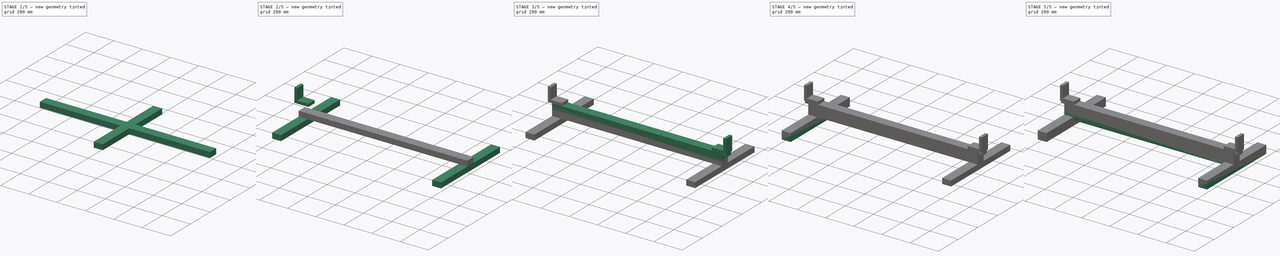
[diagram: build sequence overview — one tinted view per stage of 5, left to right]
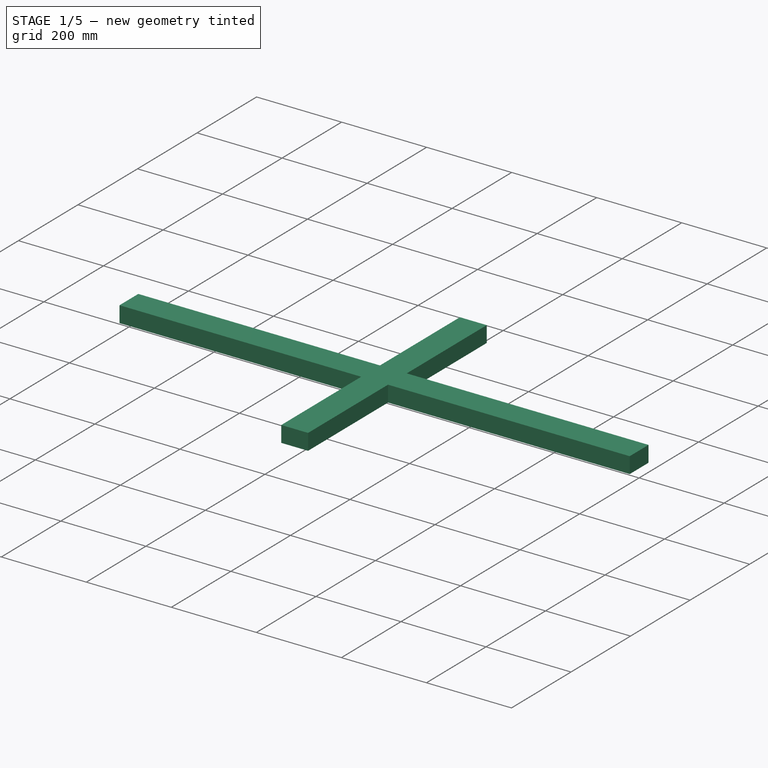
[diagram: stage 1 of 5 — iso view after this stage's code; geometry added in this stage tinted green]
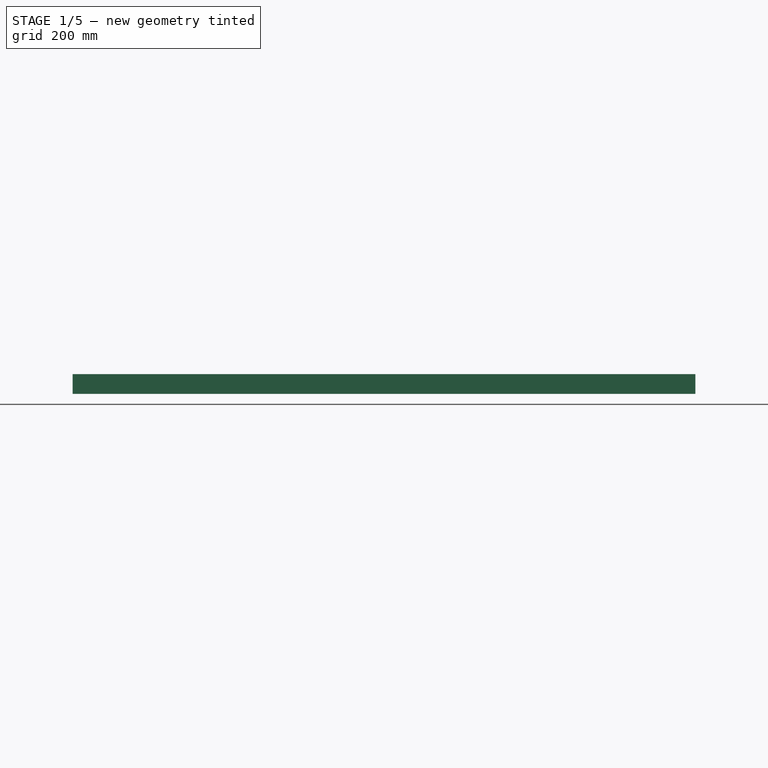
[diagram: stage 1 of 5 — front view after this stage's code; geometry added in this stage tinted green]
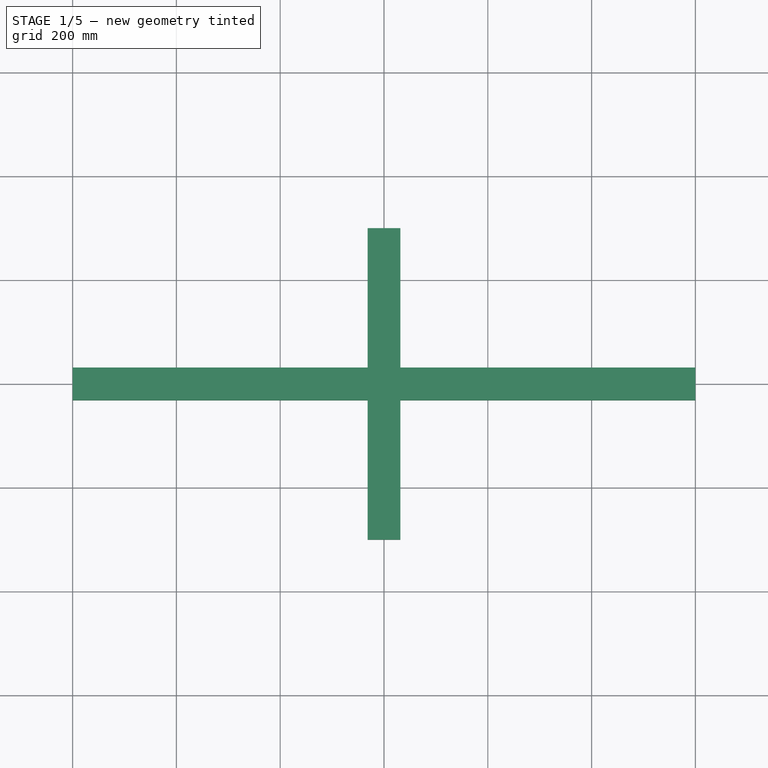
[diagram: stage 1 of 5 — top view after this stage's code; geometry added in this stage tinted green]
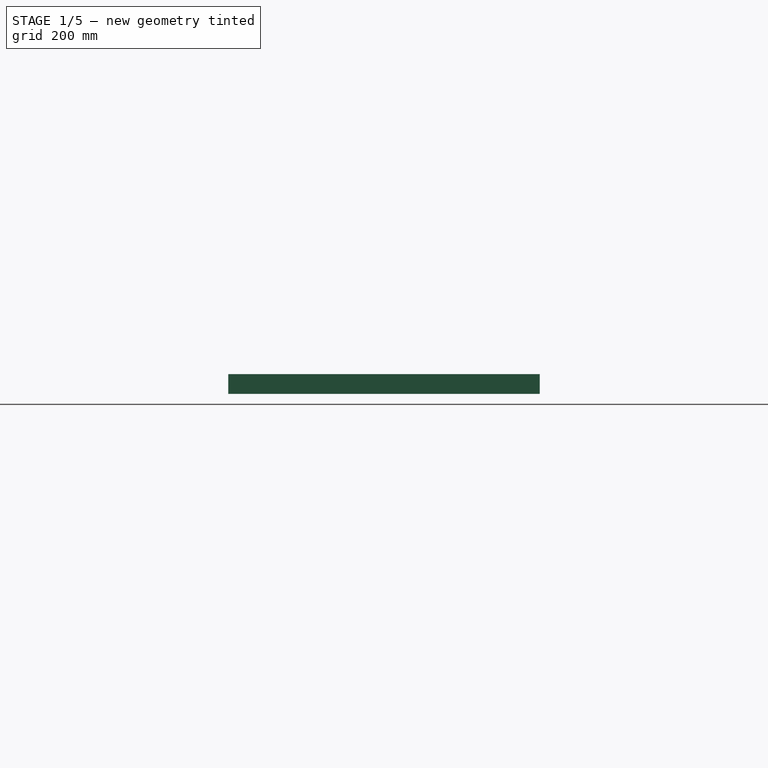
[diagram: stage 1 of 5 — right view after this stage's code; geometry added in this stage tinted green]
FCSTD DOCUMENT  (FreeCAD 0.21R33771 (Git))
Label: reflector_2024_base_3d_printing
License: All rights reserved
LicenseURL: http://en.wikipedia.org/wiki/All_rights_reserved
objects: Part::FeaturePython×6, PartDesign::Body×5, Part::Compound×4, Sketcher::SketchObject×3, PartDesign::Pad×3, PartDesign::FeatureBase×2, Part::Mirroring×1
note: 27 computed .brp shape members not serialized (recipe doc carries the construction recipe); baked Part::Feature solids carry a one-line shape summary decoded from their .brp

FEATURE [Sketcher::SketchObject] Sketch
  FullyConstrained = true
  MapMode = 5
  Support = -> [XY_Plane]
  sketch-geometry (4):
    g0: LineSegment StartX=-600 StartY=31.5 StartZ=0 EndX=600 EndY=31.5 EndZ=0
    g1: LineSegment StartX=600 StartY=31.5 StartZ=0 EndX=600 EndY=-31.5 EndZ=0
    g2: LineSegment StartX=600 StartY=-31.5 StartZ=0 EndX=-600 EndY=-31.5 EndZ=0
    g3: LineSegment StartX=-600 StartY=-31.5 StartZ=0 EndX=-600 EndY=31.5 EndZ=0
  constraints (10):
    c: Coincident(g0,g1)
    c: Coincident(g1,g2)
    c: Coincident(g2,g3)
    c: Coincident(g3,g0)
    c: Horizontal(g2)
    c: Vertical(g3)
    c: Symmetric(g0,g1,g-1)
    c: Symmetric(g0,g0,g-2)
    c: DistanceY(g1,g1) = 63
    c: DistanceX(g0,g0) = 1200
FEATURE [PartDesign::Pad] Pad  label="hand"
  Direction = (0,0,1)
  Length = 38
  Length2 = 10
  Profile = -> Sketch
  ReferenceAxis = -> Sketch [N_Axis]
  Type = 0
FEATURE [Sketcher::SketchObject] Sketch002
  FullyConstrained = true
  MapMode = 5
  Support = -> [XY_Plane003]
  sketch-geometry (4):
    g0: LineSegment StartX=-31.5 StartY=300 StartZ=0 EndX=31.5 EndY=300 EndZ=0
    g1: LineSegment StartX=31.5 StartY=300 StartZ=0 EndX=31.5 EndY=-300 EndZ=0
    g2: LineSegment StartX=31.5 StartY=-300 StartZ=0 EndX=-31.5 EndY=-300 EndZ=0
    g3: LineSegment StartX=-31.5 StartY=-300 StartZ=0 EndX=-31.5 EndY=300 EndZ=0
  constraints (10):
    c: Coincident(g0,g1)
    c: Coincident(g1,g2)
    c: Coincident(g2,g3)
    c: Coincident(g3,g0)
    c: Horizontal(g2)
    c: Vertical(g3)
    c: DistanceX(g0,g0) = 63
    c: DistanceY(g1,g1) = 600
    c: Symmetric(g1,g0,g-1)
    c: Symmetric(g0,g0,g-2)
FEATURE [PartDesign::Pad] Pad002
  Direction = (0,0,1)
  Length = 38
  Length2 = 10
  Profile = -> Sketch002
  ReferenceAxis = -> Sketch002 [N_Axis]
  Type = 0
FEATURE [PartDesign::Body] Body003  label="timber_600"
  Group = -> [Sketch002,Pad002]
  Origin = -> Origin003
  Placement = pos=(568.5,0,-38) rot=(0,0,1;0rad)
  Tip = -> Pad002
  expr: .Placement.Base.x = 600 - 63 / 2
FEATURE [PartDesign::FeatureBase] Clone001
  BaseFeature = -> Body003
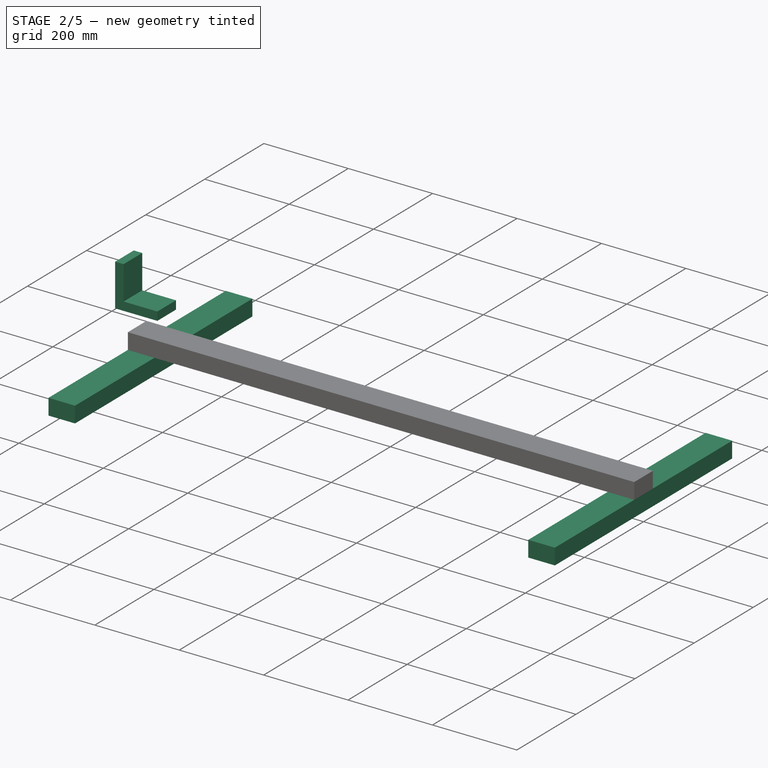
[diagram: stage 2 of 5 — iso view after this stage's code; geometry added in this stage tinted green]
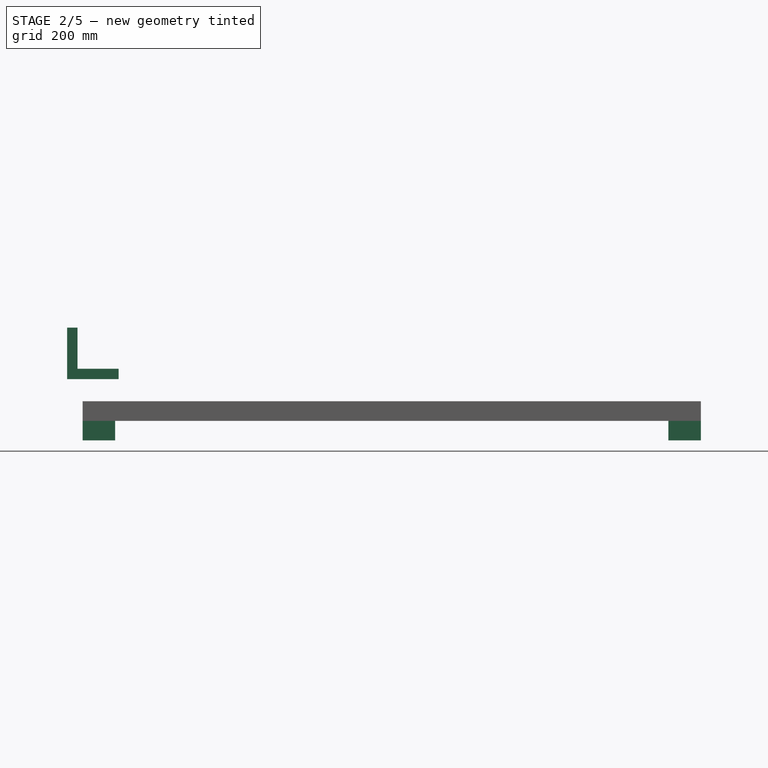
[diagram: stage 2 of 5 — front view after this stage's code; geometry added in this stage tinted green]
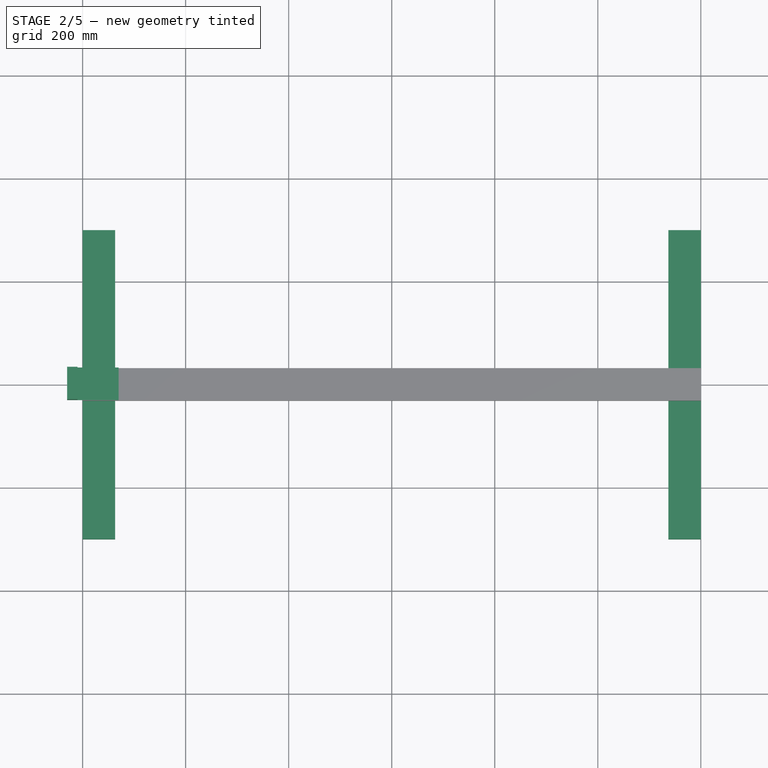
[diagram: stage 2 of 5 — top view after this stage's code; geometry added in this stage tinted green]
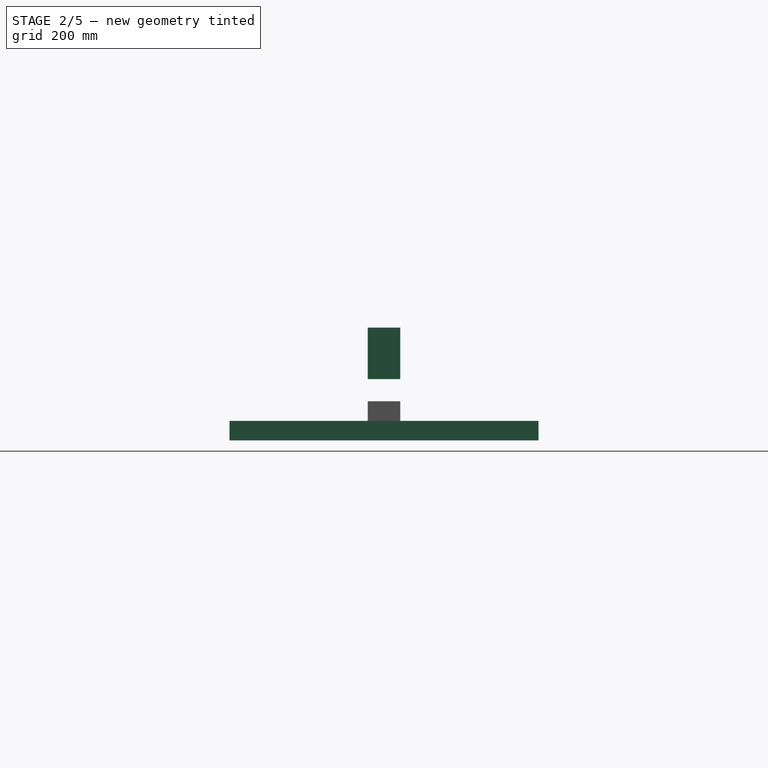
[diagram: stage 2 of 5 — right view after this stage's code; geometry added in this stage tinted green]
FEATURE [PartDesign::Body] Body001  label="timber_1200_001"
  Group = -> [Clone]
  Origin = -> Origin001
  Placement = pos=(0,0,43) rot=(0,0,1;0rad)
  Tip = -> Clone
  expr: .Placement.Base.z = 38 + 5
FEATURE [Sketcher::SketchObject] Sketch001
  FullyConstrained = true
  MapMode = 5
  Placement = pos=(0,0,0) rot=(1,0,0;1.5708rad)
  Support = -> [XZ_Plane002]
  sketch-geometry (6):
    g0: LineSegment StartX=0 StartY=100 StartZ=0 EndX=-20 EndY=100 EndZ=0
    g1: LineSegment StartX=-20 StartY=100 StartZ=0 EndX=-20 EndY=20 EndZ=0
    g2: LineSegment StartX=-20 StartY=20 StartZ=0 EndX=-100 EndY=20 EndZ=0
    g3: LineSegment StartX=-100 StartY=20 StartZ=0 EndX=-100 EndY=0 EndZ=0
    g4: LineSegment StartX=-100 StartY=0 StartZ=0 EndX=0 EndY=0 EndZ=0
    g5: LineSegment StartX=0 StartY=0 StartZ=0 EndX=0 EndY=100 EndZ=0
  constraints (17):
    c: PointOnObject(g0,g-2)
    c: Horizontal(g0)
    c: Coincident(g0,g1)
    c: Vertical(g1)
    c: Coincident(g1,g2)
    c: Horizontal(g2)
    c: Coincident(g2,g3)
    c: PointOnObject(g3,g-1)
    c: Coincident(g3,g4)
    c: Coincident(g4,g-1)
    c: Coincident(g4,g5)
    c: Coincident(g5,g0)
    c: DistanceX(g0,g0) = 20
    c: Vertical(g3)
    c: Equal(g3,g0)
    c: Equal(g5,g4)
    c: DistanceY(g1,g1) = 80
FEATURE [PartDesign::Pad] Pad001
  Direction = (0,-1,2e-16)
  Length = 63
  Length2 = 10
  Midplane = true
  Placement = pos=(0,0,0) rot=(1,0,0;1.5708rad)
  Profile = -> Sketch001
  ReferenceAxis = -> Sketch001 [N_Axis]
  Type = 0
FEATURE [PartDesign::Body] Body002  label="handle_R"
  Group = -> [Sketch001,Pad001]
  Origin = -> Origin002
  Placement = pos=(630,0,81) rot=(0,0,1;0rad)
  Tip = -> Pad001
  expr: .Placement.Base.x = 1200 / 2 + 30
  expr: .Placement.Base.z = 38 + 38 + 5
FEATURE [Part::Mirroring] Part__Mirroring  label="handle_L"
  Base = (1.52588e-05,1.07e-14,131)
  Normal = (1,0,-1.19209e-07)
  Source = -> Body002
FEATURE [PartDesign::Body] Body004
  Group = -> [Clone001]
  Origin = -> Origin004
  Placement = pos=(-568.5,0,-38) rot=(0,0,1;0rad)
  Tip = -> Clone001
  expr: .Placement.Base.x = -600 + 63 / 2
FEATURE [Part::Compound] Compound003  label="base_lower"
  Links = -> [Body003,Body004,Body]
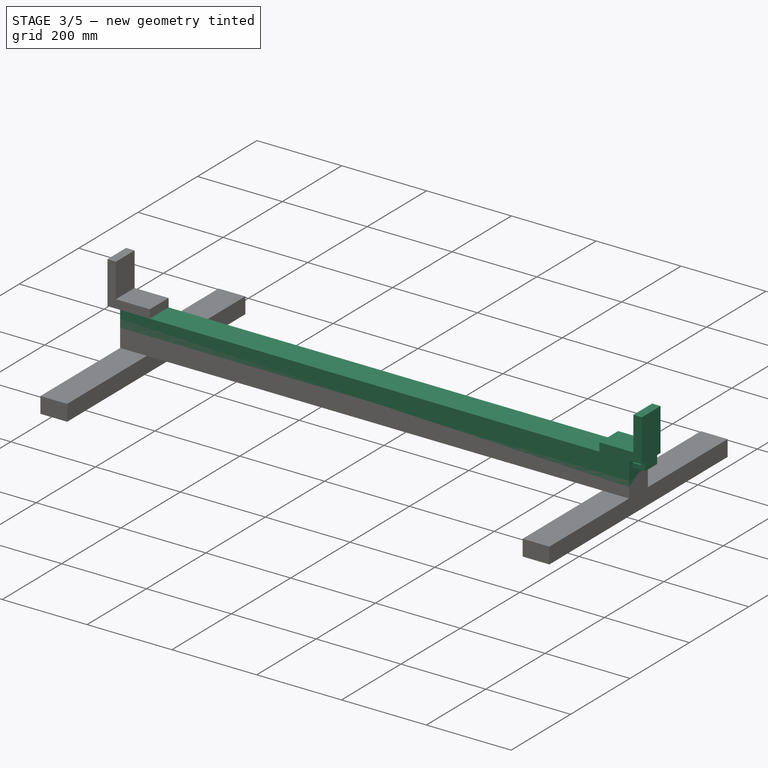
[diagram: stage 3 of 5 — iso view after this stage's code; geometry added in this stage tinted green]
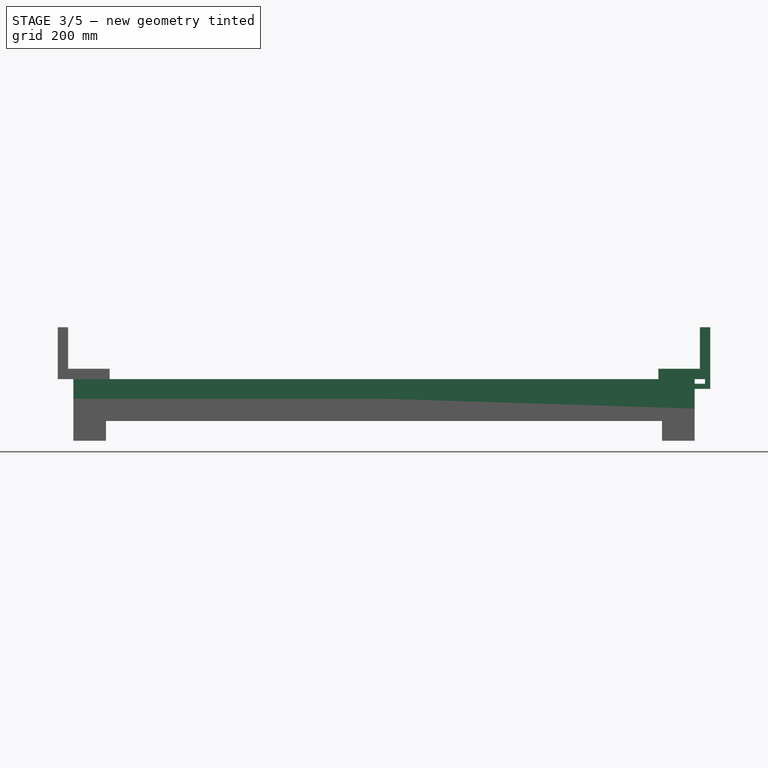
[diagram: stage 3 of 5 — front view after this stage's code; geometry added in this stage tinted green]
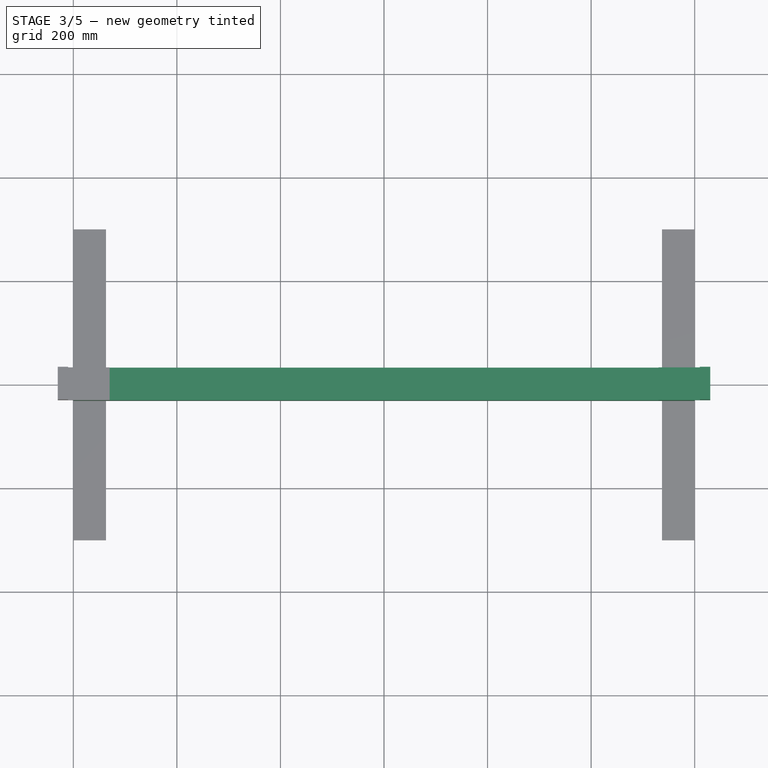
[diagram: stage 3 of 5 — top view after this stage's code; geometry added in this stage tinted green]
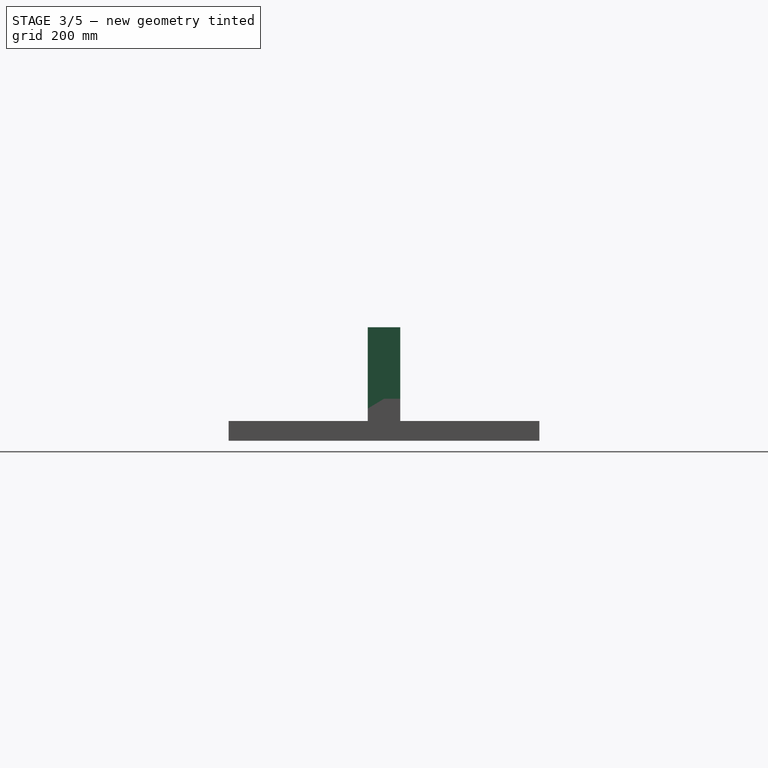
[diagram: stage 3 of 5 — right view after this stage's code; geometry added in this stage tinted green]
FEATURE [Part::FeaturePython] b_L_corner_001_001  label="L_corner_002"  # a2plus imported part (geometry in sourceFile) (typed FeaturePython)
  Placement = pos=(630,0,62) rot=(0,0,1;0rad)
  a2p_Version = 0.4.64
  fixedPosition = false
  objectType = a2pPart
  sourceFile = .\L_corner.FCStd
  subassemblyImport = false
  timeLastImport = 1.71093e+09
  updateColors = true
  expr: .Placement.Base.x = 600 + 30
  expr: .Placement.Base.z = 38 / 2 + 38 + 5
FEATURE [Part::FeaturePython] b_reflector_2024_timber_base_001_001  label="reflector_2024_timber_base_002"  # a2plus imported part (geometry in sourceFile) (typed FeaturePython)
  Placement = pos=(0,0,43) rot=(1,0,0;1.5708rad)
  a2p_Version = 0.4.64
  fixedPosition = false
  objectType = a2pPart
  sourceFile = .\reflector_2024_timber_base.FCStd
  subassemblyImport = false
  timeLastImport = 1.71095e+09
  updateColors = true
  expr: .Placement.Base.z = 38 + 5
FEATURE [PartDesign::Body] Body  label="timber_1200"
  Group = -> [Sketch,Pad]
  Origin = -> Origin
  Tip = -> Pad
FEATURE [PartDesign::FeatureBase] Clone
  BaseFeature = -> Body
FEATURE [Part::Compound] Compound002  label="base_upper"
  Links = -> [Body002,Part__Mirroring,Body001]
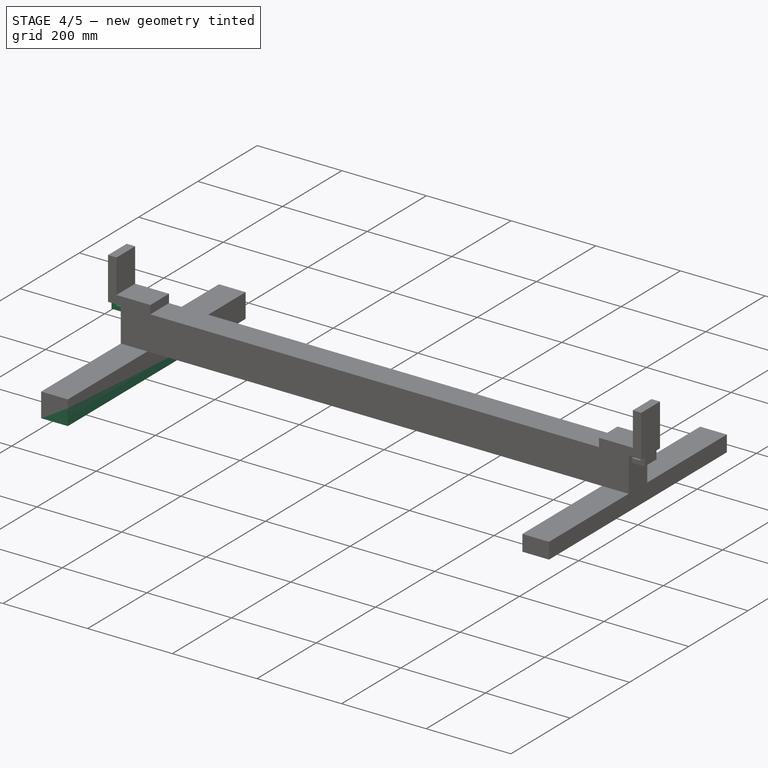
[diagram: stage 4 of 5 — iso view after this stage's code; geometry added in this stage tinted green]
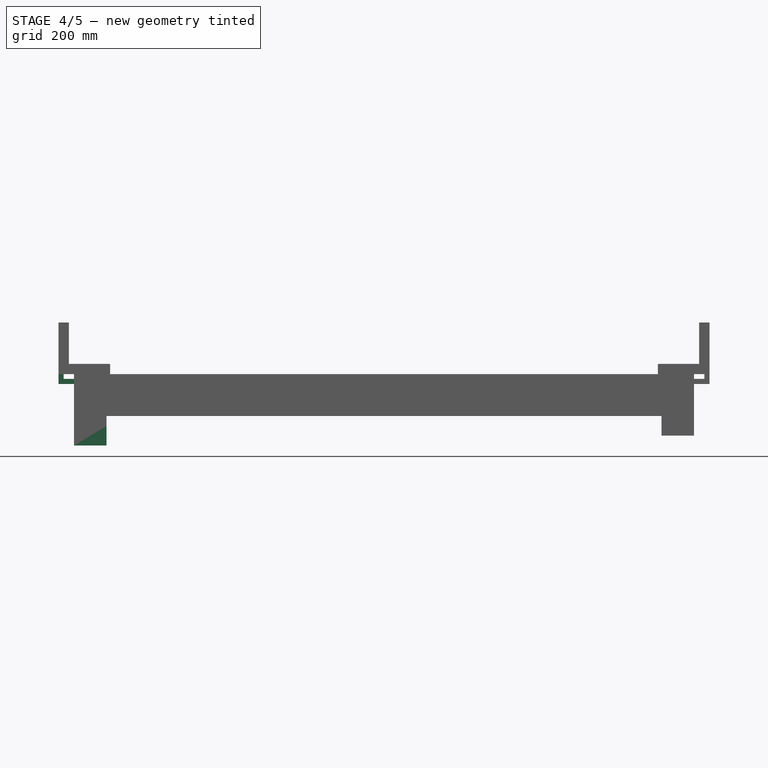
[diagram: stage 4 of 5 — front view after this stage's code; geometry added in this stage tinted green]
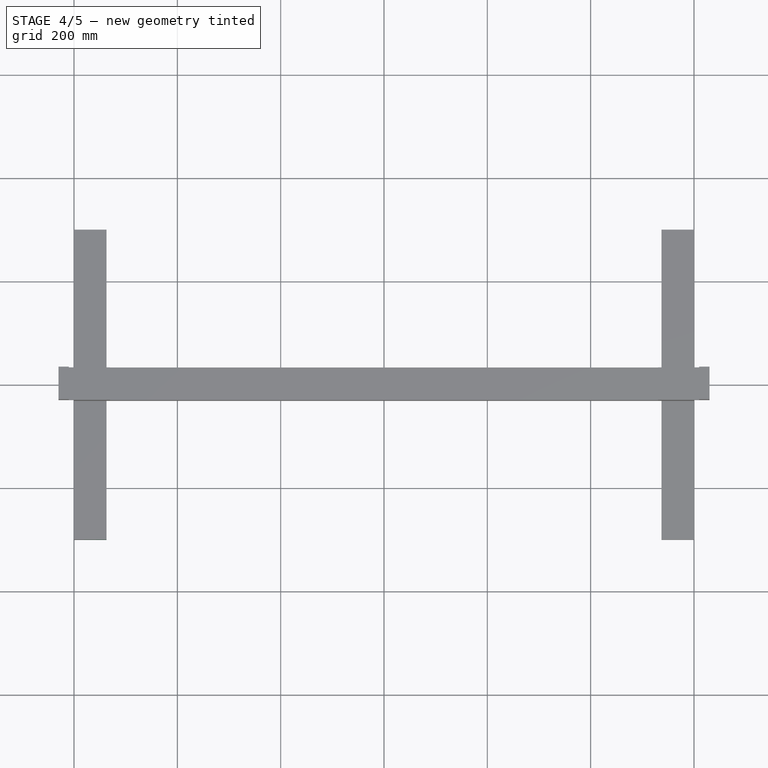
[diagram: stage 4 of 5 — top view after this stage's code; geometry added in this stage tinted green]
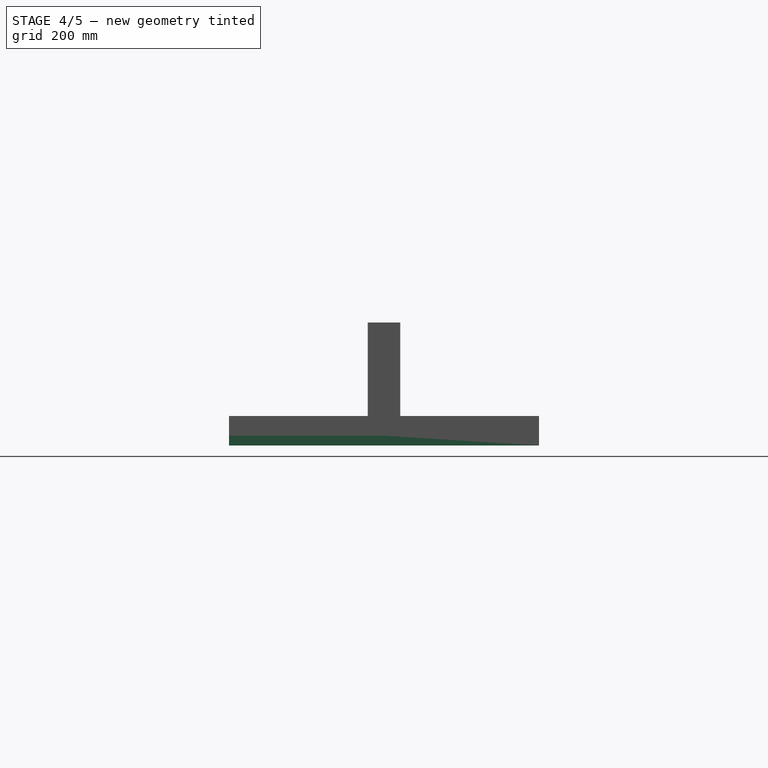
[diagram: stage 4 of 5 — right view after this stage's code; geometry added in this stage tinted green]
FEATURE [Part::FeaturePython] b_reflector_2024_timber_half_001_001  label="reflector_2024_timber_half_002"  # a2plus imported part (geometry in sourceFile) (typed FeaturePython)
  Placement = pos=(-568.5,-9e-15,-38) rot=(0.57735,-0.57735,0.57735;4.18879rad)
  a2p_Version = 0.4.64
  fixedPosition = false
  objectType = a2pPart
  sourceFile = .\reflector_2024_timber_half.FCStd
  subassemblyImport = false
  timeLastImport = 1.71052e+09
  updateColors = true
  expr: .Placement.Base.x = -(600 - 63 / 2)
  expr: .Placement.Base.z = -38
FEATURE [Part::FeaturePython] b_L_corner_001_  label="L_corner_001"  # a2plus imported part (geometry in sourceFile) (typed FeaturePython)
  Placement = pos=(-630,0,62) rot=(0,0,1;3.14159rad)
  a2p_Version = 0.4.64
  fixedPosition = false
  objectType = a2pPart
  sourceFile = .\L_corner.FCStd
  subassemblyImport = false
  timeLastImport = 1.71093e+09
  updateColors = true
  expr: .Placement.Base.x = -600 - 30
  expr: .Placement.Base.z = 38 / 2 + 38 + 5
FEATURE [Part::Compound] Compound001  label="base_2"
  Links = -> [b_L_corner_001_,b_L_corner_001_001,b_reflector_2024_timber_base_001_001]
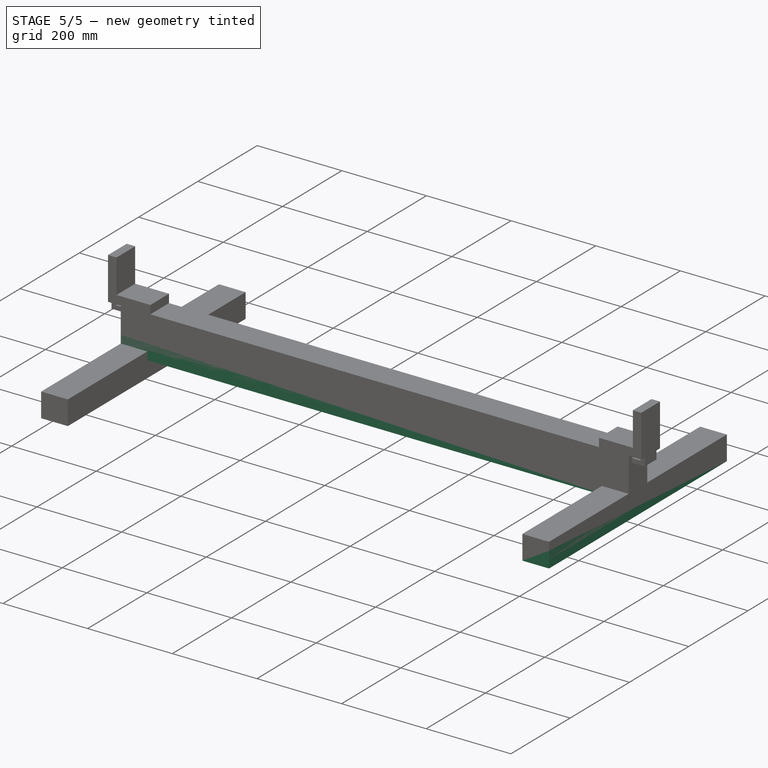
[diagram: stage 5 of 5 — iso view after this stage's code; geometry added in this stage tinted green]
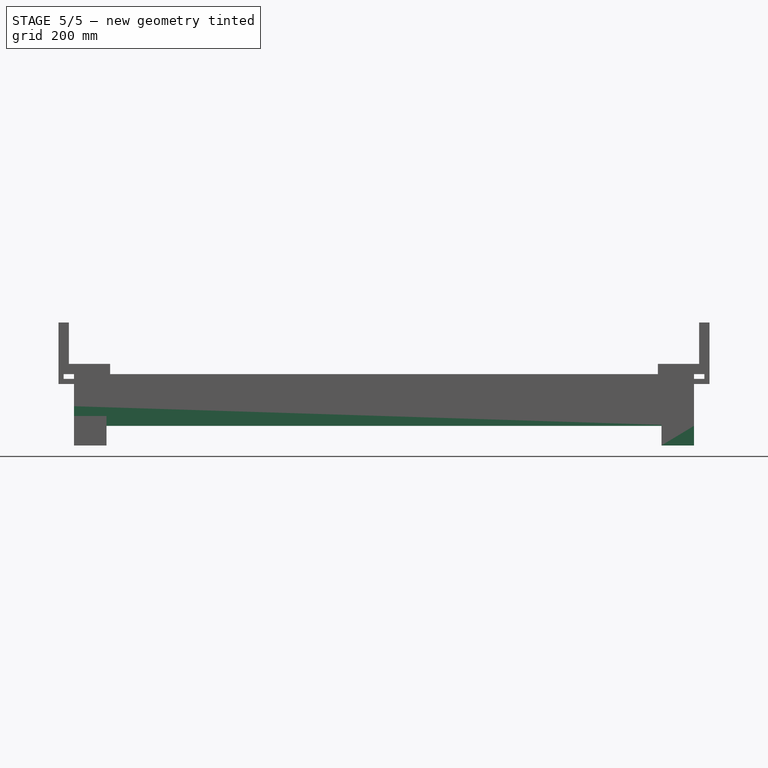
[diagram: stage 5 of 5 — front view after this stage's code; geometry added in this stage tinted green]
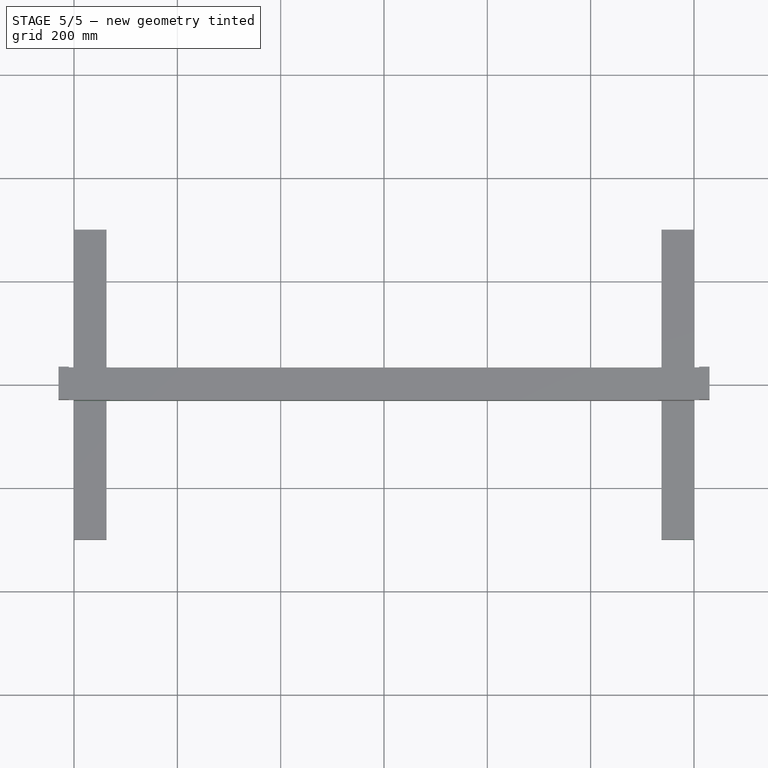
[diagram: stage 5 of 5 — top view after this stage's code; geometry added in this stage tinted green]
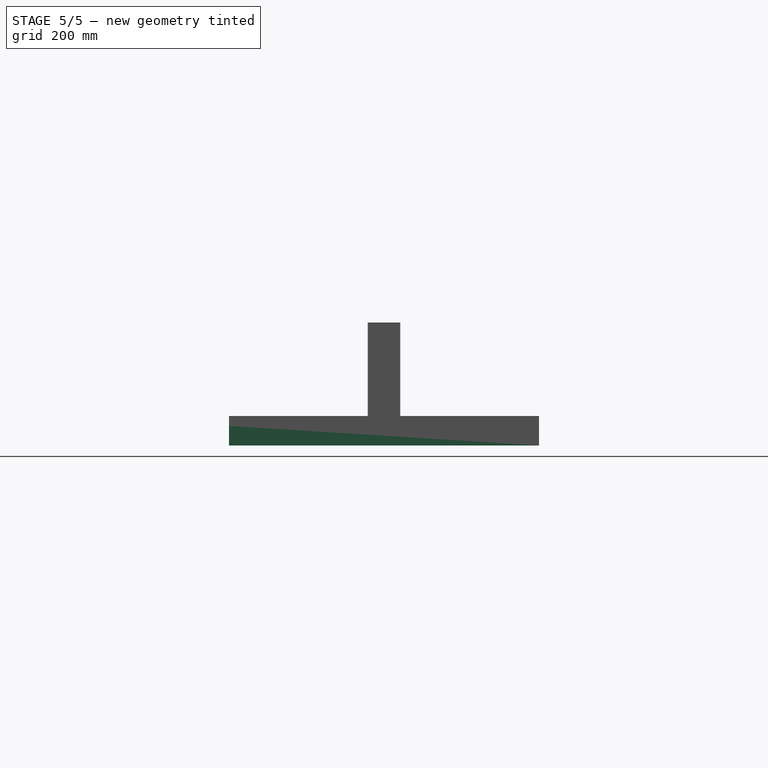
[diagram: stage 5 of 5 — right view after this stage's code; geometry added in this stage tinted green]
FEATURE [Part::FeaturePython] b_reflector_2024_timber_base_001_  label="reflector_2024_timber_base_001"  # a2plus imported part (geometry in sourceFile) (typed FeaturePython)
  Placement = pos=(0,0,0) rot=(1,0,0;1.5708rad)
  a2p_Version = 0.4.64
  fixedPosition = true
  objectType = a2pPart
  sourceFile = .\reflector_2024_timber_base.FCStd
  subassemblyImport = false
  timeLastImport = 1.71095e+09
  updateColors = true
FEATURE [Part::FeaturePython] b_reflector_2024_timber_half_001_  label="reflector_2024_timber_half_001"  # a2plus imported part (geometry in sourceFile) (typed FeaturePython)
  Placement = pos=(568.5,0,-38) rot=(0.57735,-0.57735,0.57735;4.18879rad)
  a2p_Version = 0.4.64
  fixedPosition = false
  objectType = a2pPart
  sourceFile = .\reflector_2024_timber_half.FCStd
  subassemblyImport = false
  timeLastImport = 1.71052e+09
  updateColors = true
  expr: .Placement.Base.x = 600 - 63 / 2
  expr: .Placement.Base.z = -38
FEATURE [Part::Compound] Compound  label="base_1"
  Links = -> [b_reflector_2024_timber_base_001_,b_reflector_2024_timber_half_001_,b_reflector_2024_timber_half_001_001]
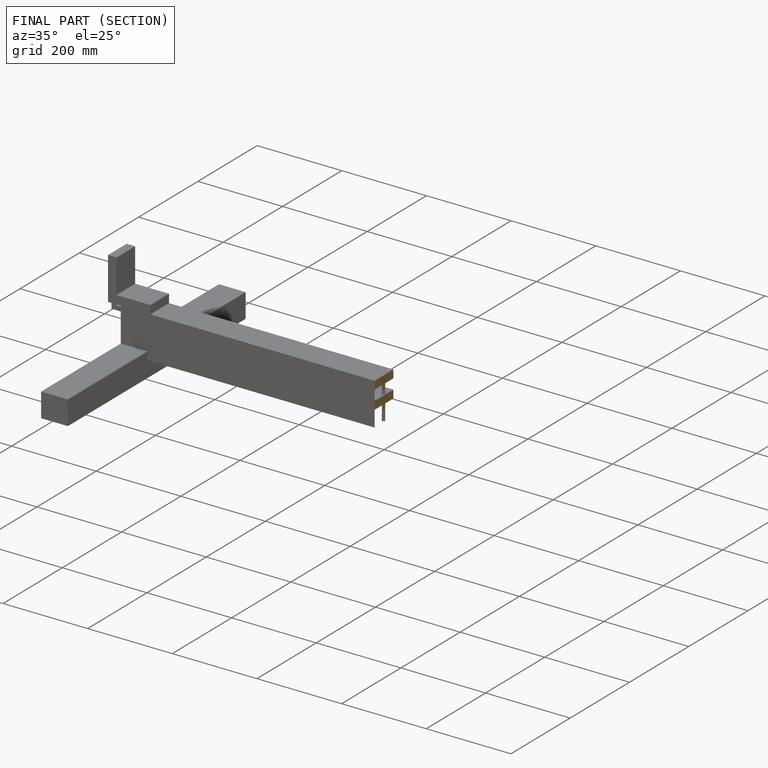
[diagram: finished part — half-section view (interior)]
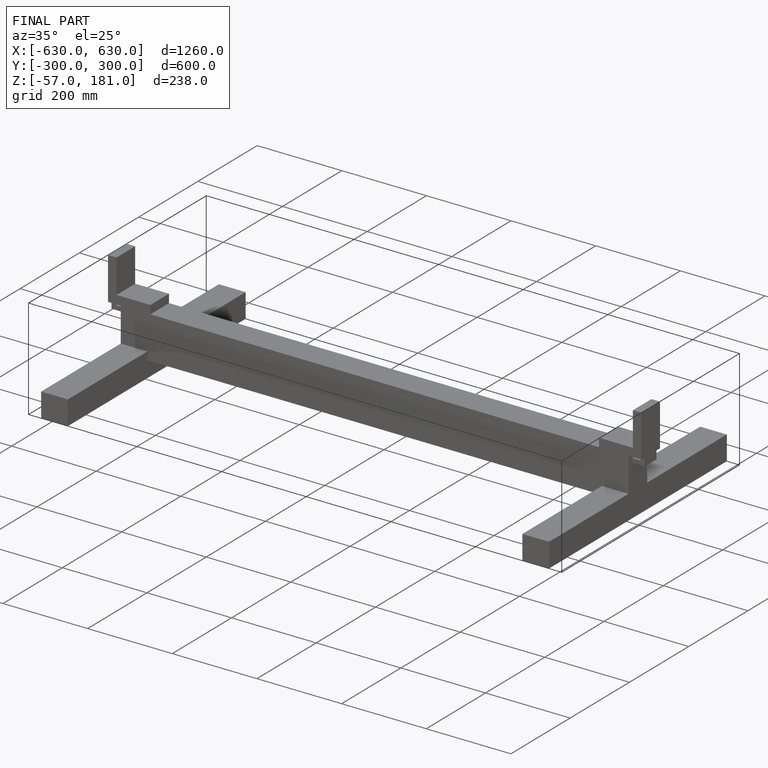
[diagram: finished part — iso view with bounding-box wireframe]
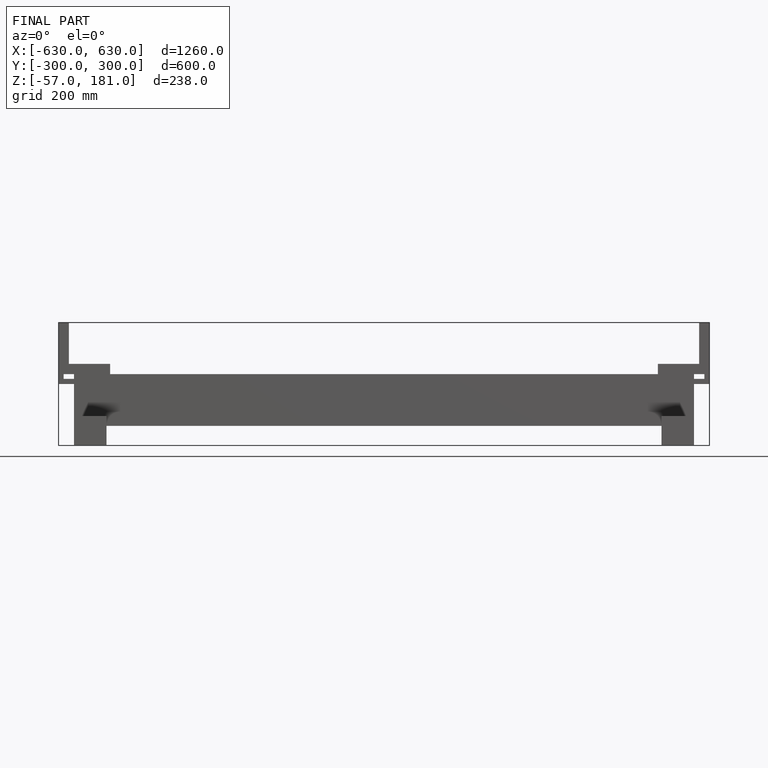
[diagram: finished part — front view with bounding-box wireframe]
